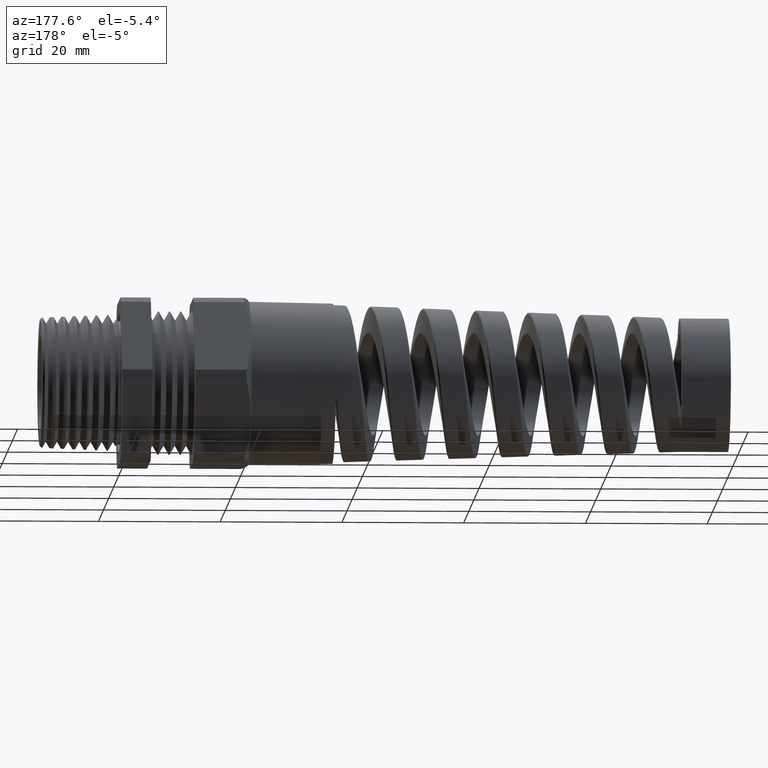
[diagram: clean part render]
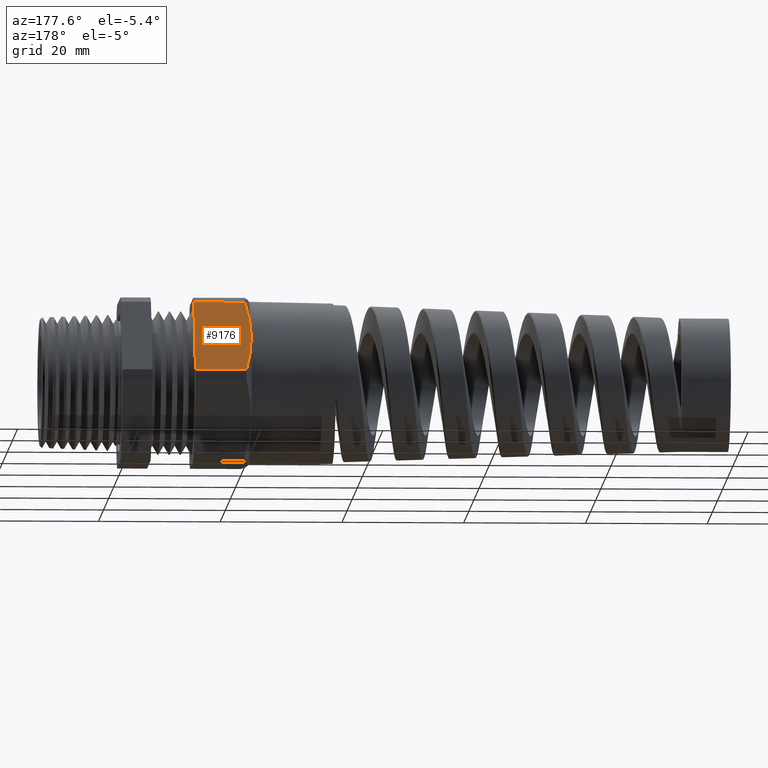
[diagram: same view with one face highlighted and labeled with its STEP entity id]
A machine part, auxiliary view. The second image highlights one B-rep face of the part: STEP entity #9176.
In plain terms, the highlighted planar face has unit normal (0, 0.866, 0.5).
Its self-contained STEP definition (entity closure, byte-faithful):
#9131 = VERTEX_POINT ( 'NONE', #13237 ) ;
#9137 = VERTEX_POINT ( 'NONE', #13291 ) ;
#9139 = EDGE_CURVE ( 'NONE', #9131, #9137, #13290, .T. ) ;
#9148 = VERTEX_POINT ( 'NONE', #13269 ) ;
#9151 = EDGE_CURVE ( 'NONE', #9148, #9152, #13267, .T. ) ;
#9152 = VERTEX_POINT ( 'NONE', #13323 ) ;
#9159 = ORIENTED_EDGE ( 'NONE', *, *, #9160, .T. ) ;
#9160 = EDGE_CURVE ( 'NONE', #9137, #9152, #13316, .T. ) ;
#9176 = ADVANCED_FACE ( 'NONE', ( #13336 ), #13335, .T. ) ;
#9177 = EDGE_LOOP ( 'NONE', ( #9178, #9179, #9182, #9184, #9159 ) ) ;
#9178 = ORIENTED_EDGE ( 'NONE', *, *, #9151, .F. ) ;
#9179 = ORIENTED_EDGE ( 'NONE', *, *, #9180, .T. ) ;
#9180 = EDGE_CURVE ( 'NONE', #9148, #9181, #13330, .T. ) ;
#9181 = VERTEX_POINT ( 'NONE', #13329 ) ;
#9182 = ORIENTED_EDGE ( 'NONE', *, *, #9183, .T. ) ;
#9183 = EDGE_CURVE ( 'NONE', #9181, #9131, #13377, .T. ) ;
#9184 = ORIENTED_EDGE ( 'NONE', *, *, #9139, .T. ) ;
#13237 = CARTESIAN_POINT ( 'NONE',  ( -0.8007805228795398200, 0.3253325497488163100, 0.4965074944791208500 ) ) ;
#13264 = DIRECTION ( 'NONE',  ( 1.000000000000000000, 0.0000000000000000000, 0.0000000000000000000 ) ) ;
#13265 = VECTOR ( 'NONE', #13264, 39.37007874015748100 ) ;
#13266 = CARTESIAN_POINT ( 'NONE',  ( -2.533243884661831900, 0.5926543782626885200, 0.03349250552087933200 ) ) ;
#13267 = LINE ( 'NONE', #13266, #13265 ) ;
#13269 = CARTESIAN_POINT ( 'NONE',  ( -0.8007805228795399400, 0.5926543782626886300, 0.03349250552087937300 ) ) ;
#13287 = DIRECTION ( 'NONE',  ( 1.000000000000000000, 0.0000000000000000000, 0.0000000000000000000 ) ) ;
#13288 = VECTOR ( 'NONE', #13287, 39.37007874015748100 ) ;
#13289 = CARTESIAN_POINT ( 'NONE',  ( -2.533243884661831900, 0.3253325497488162000, 0.4965074944791207400 ) ) ;
#13290 = LINE ( 'NONE', #13289, #13288 ) ;
#13291 = CARTESIAN_POINT ( 'NONE',  ( -0.4708333333333333300, 0.3253325497488162000, 0.4965074944791207400 ) ) ;
#13313 = DIRECTION ( 'NONE',  ( 0.0000000000000000000, 0.5000000000000001100, -0.8660254037844386000 ) ) ;
#13314 = VECTOR ( 'NONE', #13313, 39.37007874015748100 ) ;
#13315 = CARTESIAN_POINT ( 'NONE',  ( -0.4708333333333333300, 0.5755934640057525100, 0.06304287583746889800 ) ) ;
#13316 = LINE ( 'NONE', #13315, #13314 ) ;
#13323 = CARTESIAN_POINT ( 'NONE',  ( -0.4708333333333333300, 0.5926543782626885200, 0.03349250552087933200 ) ) ;
#13324 = CARTESIAN_POINT ( 'NONE',  ( -0.8375000000000000200, 0.4816077763961066300, 0.2258308619616720700 ) ) ;
#13325 = CARTESIAN_POINT ( 'NONE',  ( -0.8341133144435343100, 0.5040353240607424700, 0.1869852099173502400 ) ) ;
#13326 = CARTESIAN_POINT ( 'NONE',  ( -0.8214552305450429900, 0.5485658965634915300, 0.1098559958524596100 ) ) ;
#13327 = CARTESIAN_POINT ( 'NONE',  ( -0.8122123161882932600, 0.5706704922010212800, 0.07156971312749205200 ) ) ;
#13328 = CARTESIAN_POINT ( 'NONE',  ( -0.8007805228795399400, 0.5926543782626886300, 0.03349250552087937300 ) ) ;
#13329 = CARTESIAN_POINT ( 'NONE',  ( -0.8375000000000000200, 0.4589934640057524200, 0.2650000000000000700 ) ) ;
#13330 = B_SPLINE_CURVE_WITH_KNOTS ( 'NONE', 3,
 ( #13328, #13327, #13326, #13325, #13324, #13378 ),
 .UNSPECIFIED., .F., .F.,
 ( 4, 2, 4 ),
 ( 2.361309237138549100E-007, 0.003425884400195740800, 0.006851532669467767300 ),
 .UNSPECIFIED. ) ;
#13331 = DIRECTION ( 'NONE',  ( 0.0000000000000000000, -0.5000000000000001100, 0.8660254037844386000 ) ) ;
#13332 = DIRECTION ( 'NONE',  ( 0.0000000000000000000, 0.8660254037844386000, 0.5000000000000001100 ) ) ;
#13333 = CARTESIAN_POINT ( 'NONE',  ( -2.533243884661831900, 0.5926543782626886300, 0.03349250552087932500 ) ) ;
#13334 = AXIS2_PLACEMENT_3D ( 'NONE', #13333, #13332, #13331 ) ;
#13335 = PLANE ( 'NONE',  #13334 ) ;
#13336 = FACE_OUTER_BOUND ( 'NONE', #9177, .T. ) ;
#13368 = CARTESIAN_POINT ( 'NONE',  ( -0.8007805228795398200, 0.3253325497488163100, 0.4965074944791208500 ) ) ;
#13369 = CARTESIAN_POINT ( 'NONE',  ( -0.8121583111907523200, 0.3472125816136489900, 0.4586101676180046600 ) ) ;
#13370 = CARTESIAN_POINT ( 'NONE',  ( -0.8214003591281861000, 0.3692675418263461900, 0.4204098559707027900 ) ) ;
#13371 = CARTESIAN_POINT ( 'NONE',  ( -0.8309221305962482000, 0.4027055574402840200, 0.3624935140230810000 ) ) ;
#13372 = CARTESIAN_POINT ( 'NONE',  ( -0.8333721404368322800, 0.4139108550001431300, 0.3430853693354772900 ) ) ;
#13373 = CARTESIAN_POINT ( 'NONE',  ( -0.8366665420851497900, 0.4364529586652056700, 0.3040413004781043500 ) ) ;
#13374 = CARTESIAN_POINT ( 'NONE',  ( -0.8374999999999999100, 0.4477627782903754700, 0.2844521182628709200 ) ) ;
#13375 = CARTESIAN_POINT ( 'NONE',  ( -0.8375000000000000200, 0.4589934640057524200, 0.2650000000000000700 ) ) ;
#13377 = B_SPLINE_CURVE_WITH_KNOTS ( 'NONE', 3,
 ( #13375, #13374, #13373, #13372, #13371, #13370, #13369, #13368 ),
 .UNSPECIFIED., .F., .F.,
 ( 4, 2, 2, 4 ),
 ( 0.006851532669467767300, 0.008552772946843112700, 0.01025401322421845600, 0.01365649377896913800 ),
 .UNSPECIFIED. ) ;
#13378 = CARTESIAN_POINT ( 'NONE',  ( -0.8375000000000000200, 0.4589934640057524200, 0.2650000000000000700 ) ) ;